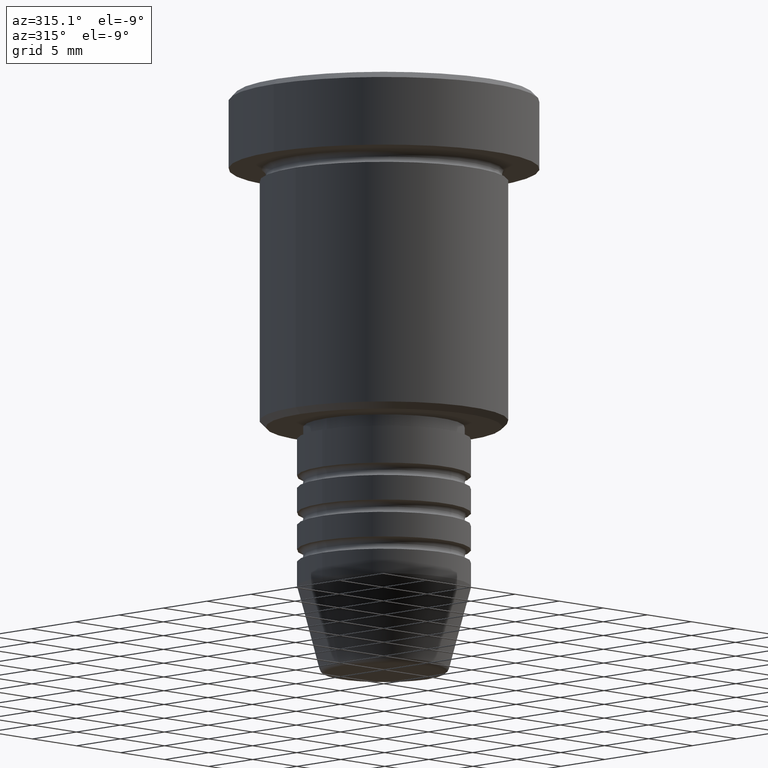
[diagram: clean part render]
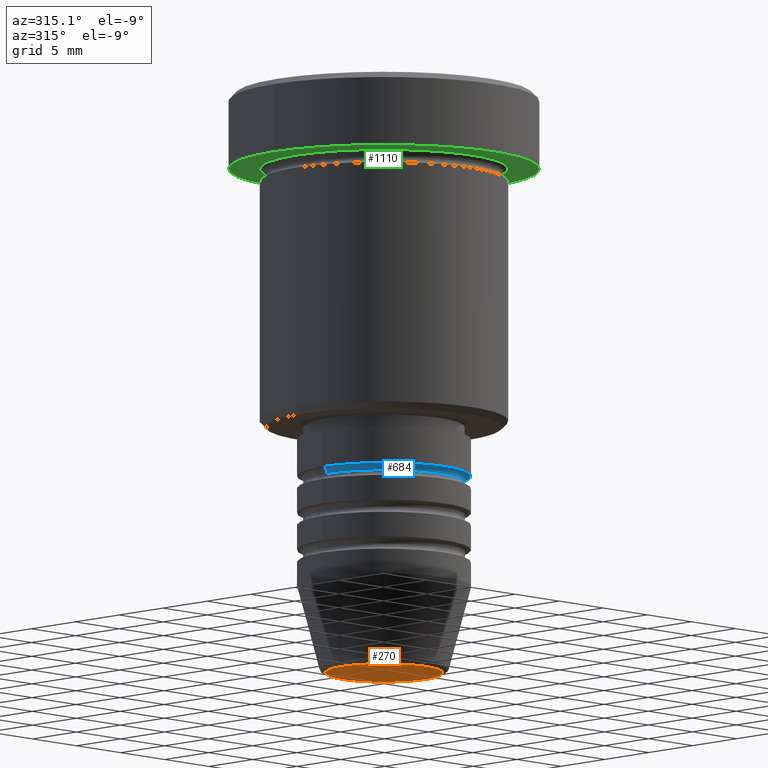
[diagram: same view with three faces highlighted in distinct colors, each labeled with its STEP entity id]
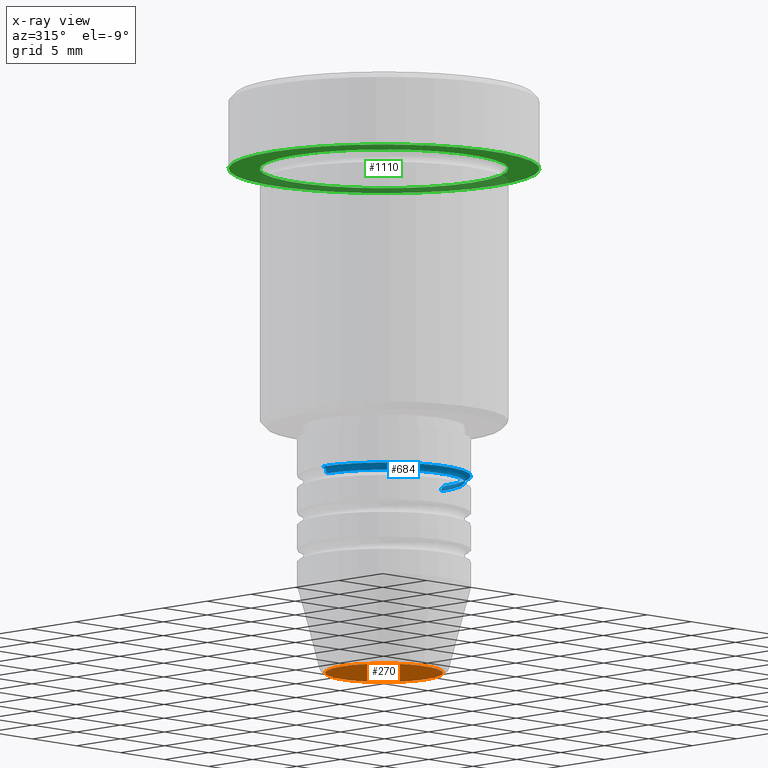
[diagram: x-ray of the same camera — body ghosted, the three highlighted faces saturated]
A machine part, auxiliary view with three faces highlighted in distinct colors.
The next image is the same camera in x-ray (body ghosted, the three faces saturated) — at least one of them is partly hidden behind the body in this view.
Their STEP definitions:

[orange] entity #270 — the highlighted planar face has unit normal (0, -0, 1).
#21 = DIRECTION ( 'NONE',  ( 1.000000000000000000, 0.000000000000000000, 0.000000000000000000 ) ) ;
#156 = CIRCLE ( 'NONE', #820, 4.740692158992657390 ) ;
#161 = CARTESIAN_POINT ( 'NONE',  ( 0.000000000000000000, 0.000000000000000000, -47.00000000000000000 ) ) ;
#164 = DIRECTION ( 'NONE',  ( 0.000000000000000000, 0.000000000000000000, -1.000000000000000000 ) ) ;
#170 = DIRECTION ( 'NONE',  ( 1.000000000000000000, 0.000000000000000000, 0.000000000000000000 ) ) ;
#232 = AXIS2_PLACEMENT_3D ( 'NONE', #966, #164, #21 ) ;
#240 = EDGE_LOOP ( 'NONE', ( #726, #976 ) ) ;
#270 = ADVANCED_FACE ( 'NONE', ( #1048 ), #957, .F. ) ;
#357 = EDGE_CURVE ( 'NONE', #972, #807, #156, .T. ) ;
#381 = AXIS2_PLACEMENT_3D ( 'NONE', #608, #973, #170 ) ;
#502 = DIRECTION ( 'NONE',  ( 1.000000000000000000, 0.000000000000000000, 0.000000000000000000 ) ) ;
#608 = CARTESIAN_POINT ( 'NONE',  ( 0.000000000000000000, 0.000000000000000000, -47.00000000000000000 ) ) ;
#726 = ORIENTED_EDGE ( 'NONE', *, *, #762, .T. ) ;
#762 = EDGE_CURVE ( 'NONE', #807, #972, #921, .T. ) ;
#807 = VERTEX_POINT ( 'NONE', #865 ) ;
#820 = AXIS2_PLACEMENT_3D ( 'NONE', #161, #863, #502 ) ;
#863 = DIRECTION ( 'NONE',  ( 0.000000000000000000, 0.000000000000000000, -1.000000000000000000 ) ) ;
#865 = CARTESIAN_POINT ( 'NONE',  ( 4.740692158992657390, 0.000000000000000000, -47.00000000000000000 ) ) ;
#921 = CIRCLE ( 'NONE', #232, 4.740692158992657390 ) ;
#957 = PLANE ( 'NONE',  #381 ) ;
#966 = CARTESIAN_POINT ( 'NONE',  ( 0.000000000000000000, 0.000000000000000000, -47.00000000000000000 ) ) ;
#972 = VERTEX_POINT ( 'NONE', #1177 ) ;
#973 = DIRECTION ( 'NONE',  ( 0.000000000000000000, -0.000000000000000000, 1.000000000000000000 ) ) ;
#976 = ORIENTED_EDGE ( 'NONE', *, *, #357, .T. ) ;
#1048 = FACE_OUTER_BOUND ( 'NONE', #240, .T. ) ;
#1177 = CARTESIAN_POINT ( 'NONE',  ( -4.740692158992657390, 6.101402971097978774E-16, -47.00000000000000000 ) ) ;

[blue] entity #684 — the highlighted toroidal blend (fillet) surface has major radius 7 mm and minor (blend) radius 0.5 mm.
#56 = CIRCLE ( 'NONE', #1098, 6.500000000000000888 ) ;
#75 = DIRECTION ( 'NONE',  ( 1.000000000000000000, 0.000000000000000000, 0.000000000000000000 ) ) ;
#80 = AXIS2_PLACEMENT_3D ( 'NONE', #1137, #697, #314 ) ;
#116 = DIRECTION ( 'NONE',  ( 1.000000000000000000, 0.000000000000000000, 0.000000000000000000 ) ) ;
#127 = DIRECTION ( 'NONE',  ( 0.000000000000000000, 0.000000000000000000, -1.000000000000000000 ) ) ;
#145 = DIRECTION ( 'NONE',  ( -1.000000000000000000, 0.000000000000000000, 0.000000000000000000 ) ) ;
#149 = CARTESIAN_POINT ( 'NONE',  ( 0.000000000000000000, 0.000000000000000000, -31.49999999999997868 ) ) ;
#202 = EDGE_CURVE ( 'NONE', #409, #951, #1160, .T. ) ;
#210 = CIRCLE ( 'NONE', #799, 7.000000000000000000 ) ;
#236 = EDGE_CURVE ( 'NONE', #951, #859, #210, .T. ) ;
#314 = DIRECTION ( 'NONE',  ( -1.000000000000000000, -1.224646799147351482E-16, 0.000000000000000000 ) ) ;
#369 = DIRECTION ( 'NONE',  ( -0.000000000000000000, -1.000000000000000000, -0.000000000000000000 ) ) ;
#409 = VERTEX_POINT ( 'NONE', #1046 ) ;
#460 = EDGE_CURVE ( 'NONE', #604, #859, #1141, .T. ) ;
#478 = CARTESIAN_POINT ( 'NONE',  ( 0.000000000000000000, 0.000000000000000000, -31.49999999999998579 ) ) ;
#494 = EDGE_LOOP ( 'NONE', ( #1115, #518, #1022, #754 ) ) ;
#518 = ORIENTED_EDGE ( 'NONE', *, *, #460, .T. ) ;
#568 = EDGE_CURVE ( 'NONE', #409, #604, #56, .T. ) ;
#604 = VERTEX_POINT ( 'NONE', #867 ) ;
#663 = CARTESIAN_POINT ( 'NONE',  ( -7.000000000000000888, 0.000000000000000000, -31.49999999999997868 ) ) ;
#684 = ADVANCED_FACE ( 'NONE', ( #939 ), #1036, .F. ) ;
#696 = CARTESIAN_POINT ( 'NONE',  ( -7.000000000000000000, 8.572527594031473190E-16, -30.99999999999997868 ) ) ;
#697 = DIRECTION ( 'NONE',  ( -1.224646799147353207E-16, 1.000000000000000000, 0.000000000000000000 ) ) ;
#703 = AXIS2_PLACEMENT_3D ( 'NONE', #149, #127, #145 ) ;
#754 = ORIENTED_EDGE ( 'NONE', *, *, #202, .F. ) ;
#799 = AXIS2_PLACEMENT_3D ( 'NONE', #879, #814, #75 ) ;
#814 = DIRECTION ( 'NONE',  ( -0.000000000000000000, -0.000000000000000000, 1.000000000000000000 ) ) ;
#835 = DIRECTION ( 'NONE',  ( -0.000000000000000000, -0.000000000000000000, 1.000000000000000000 ) ) ;
#843 = CARTESIAN_POINT ( 'NONE',  ( 7.000000000000000000, 0.000000000000000000, -30.99999999999997868 ) ) ;
#859 = VERTEX_POINT ( 'NONE', #843 ) ;
#867 = CARTESIAN_POINT ( 'NONE',  ( 6.500000000000000888, 0.000000000000000000, -31.49999999999998579 ) ) ;
#879 = CARTESIAN_POINT ( 'NONE',  ( 0.000000000000000000, 0.000000000000000000, -30.99999999999997868 ) ) ;
#939 = FACE_OUTER_BOUND ( 'NONE', #494, .T. ) ;
#951 = VERTEX_POINT ( 'NONE', #696 ) ;
#1022 = ORIENTED_EDGE ( 'NONE', *, *, #236, .F. ) ;
#1036 = TOROIDAL_SURFACE ( 'NONE', #703, 7.000000000000000888, 0.5000000000000000000 ) ;
#1046 = CARTESIAN_POINT ( 'NONE',  ( -6.500000000000000888, 8.266365894244635319E-16, -31.49999999999998579 ) ) ;
#1098 = AXIS2_PLACEMENT_3D ( 'NONE', #478, #835, #116 ) ;
#1108 = DIRECTION ( 'NONE',  ( 0.000000000000000000, 0.000000000000000000, -1.000000000000000000 ) ) ;
#1115 = ORIENTED_EDGE ( 'NONE', *, *, #568, .T. ) ;
#1137 = CARTESIAN_POINT ( 'NONE',  ( 7.000000000000000888, 8.572527594031474176E-16, -31.49999999999997868 ) ) ;
#1140 = AXIS2_PLACEMENT_3D ( 'NONE', #663, #369, #1108 ) ;
#1141 = CIRCLE ( 'NONE', #80, 0.5000000000000004441 ) ;
#1160 = CIRCLE ( 'NONE', #1140, 0.5000000000000004441 ) ;

[green] entity #1110 — the highlighted planar face has unit normal (0, 0, -1).
#28 = DIRECTION ( 'NONE',  ( -0.000000000000000000, -0.000000000000000000, 1.000000000000000000 ) ) ;
#38 = CIRCLE ( 'NONE', #484, 10.00000000000000000 ) ;
#49 = EDGE_LOOP ( 'NONE', ( #446, #503 ) ) ;
#102 = DIRECTION ( 'NONE',  ( 1.000000000000000000, 0.000000000000000000, 0.000000000000000000 ) ) ;
#131 = VERTEX_POINT ( 'NONE', #465 ) ;
#142 = EDGE_CURVE ( 'NONE', #131, #311, #397, .T. ) ;
#172 = ORIENTED_EDGE ( 'NONE', *, *, #583, .F. ) ;
#189 = EDGE_CURVE ( 'NONE', #311, #131, #38, .T. ) ;
#264 = AXIS2_PLACEMENT_3D ( 'NONE', #286, #346, #102 ) ;
#279 = CARTESIAN_POINT ( 'NONE',  ( 0.000000000000000000, 0.000000000000000000, -5.999999999999996447 ) ) ;
#286 = CARTESIAN_POINT ( 'NONE',  ( 0.000000000000000000, 0.000000000000000000, -5.999999999999996447 ) ) ;
#311 = VERTEX_POINT ( 'NONE', #791 ) ;
#343 = EDGE_LOOP ( 'NONE', ( #172, #1010 ) ) ;
#346 = DIRECTION ( 'NONE',  ( -0.000000000000000000, -0.000000000000000000, 1.000000000000000000 ) ) ;
#347 = DIRECTION ( 'NONE',  ( 0.000000000000000000, 0.000000000000000000, -1.000000000000000000 ) ) ;
#373 = CARTESIAN_POINT ( 'NONE',  ( 0.000000000000000000, 12.50000000000000000, -5.999999999999996447 ) ) ;
#397 = CIRCLE ( 'NONE', #836, 10.00000000000000000 ) ;
#444 = FACE_BOUND ( 'NONE', #49, .T. ) ;
#446 = ORIENTED_EDGE ( 'NONE', *, *, #142, .T. ) ;
#465 = CARTESIAN_POINT ( 'NONE',  ( -10.00000000000000000, 0.000000000000000000, -5.999999999999996447 ) ) ;
#470 = CARTESIAN_POINT ( 'NONE',  ( -12.50000000000000000, 1.530808498934191521E-15, -5.999999999999996447 ) ) ;
#484 = AXIS2_PLACEMENT_3D ( 'NONE', #1094, #914, #1001 ) ;
#503 = ORIENTED_EDGE ( 'NONE', *, *, #189, .T. ) ;
#515 = VERTEX_POINT ( 'NONE', #648 ) ;
#533 = PLANE ( 'NONE',  #1005 ) ;
#583 = EDGE_CURVE ( 'NONE', #515, #864, #759, .T. ) ;
#640 = DIRECTION ( 'NONE',  ( -0.000000000000000000, -0.000000000000000000, 1.000000000000000000 ) ) ;
#645 = AXIS2_PLACEMENT_3D ( 'NONE', #279, #640, #1049 ) ;
#648 = CARTESIAN_POINT ( 'NONE',  ( 12.50000000000000000, 0.000000000000000000, -5.999999999999996447 ) ) ;
#759 = CIRCLE ( 'NONE', #645, 12.50000000000000000 ) ;
#791 = CARTESIAN_POINT ( 'NONE',  ( 10.00000000000000000, 1.224646799147353256E-15, -5.999999999999996447 ) ) ;
#825 = DIRECTION ( 'NONE',  ( -1.000000000000000000, 0.000000000000000000, 0.000000000000000000 ) ) ;
#836 = AXIS2_PLACEMENT_3D ( 'NONE', #903, #28, #825 ) ;
#841 = CIRCLE ( 'NONE', #264, 12.50000000000000000 ) ;
#864 = VERTEX_POINT ( 'NONE', #470 ) ;
#893 = FACE_OUTER_BOUND ( 'NONE', #343, .T. ) ;
#903 = CARTESIAN_POINT ( 'NONE',  ( 0.000000000000000000, 0.000000000000000000, -5.999999999999996447 ) ) ;
#914 = DIRECTION ( 'NONE',  ( -0.000000000000000000, -0.000000000000000000, 1.000000000000000000 ) ) ;
#995 = DIRECTION ( 'NONE',  ( -1.000000000000000000, 0.000000000000000000, -0.000000000000000000 ) ) ;
#996 = EDGE_CURVE ( 'NONE', #864, #515, #841, .T. ) ;
#1001 = DIRECTION ( 'NONE',  ( -1.000000000000000000, 0.000000000000000000, 0.000000000000000000 ) ) ;
#1005 = AXIS2_PLACEMENT_3D ( 'NONE', #373, #347, #995 ) ;
#1010 = ORIENTED_EDGE ( 'NONE', *, *, #996, .F. ) ;
#1049 = DIRECTION ( 'NONE',  ( 1.000000000000000000, 0.000000000000000000, 0.000000000000000000 ) ) ;
#1094 = CARTESIAN_POINT ( 'NONE',  ( 0.000000000000000000, 0.000000000000000000, -5.999999999999996447 ) ) ;
#1110 = ADVANCED_FACE ( 'NONE', ( #444, #893 ), #533, .T. ) ;